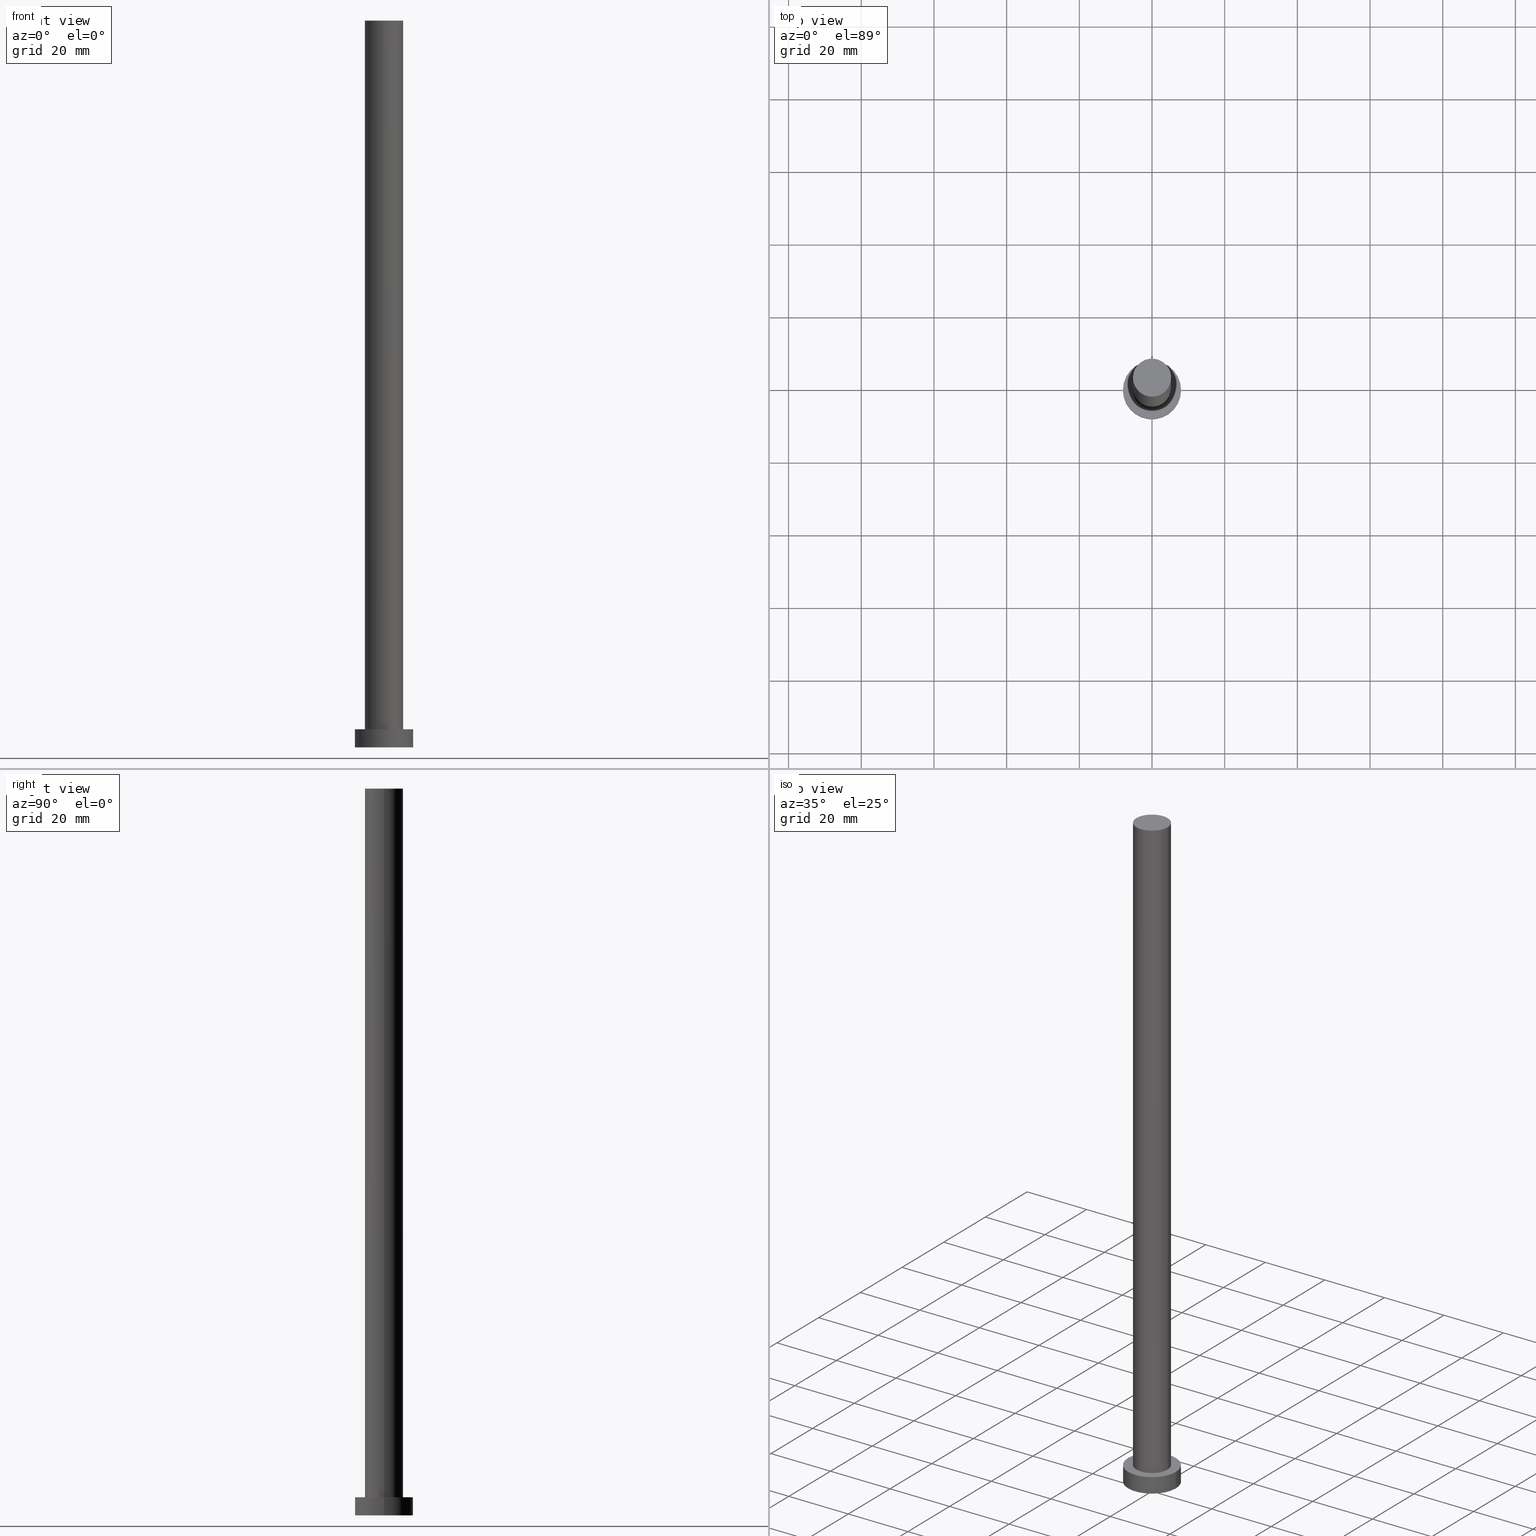
[diagram: canonical four-view strip — front | top / right | iso, engineering-drawing reading convention]
A machine part, canonical four-view strip (front | top / right | iso — engineering-drawing reading convention). The complete STEP part file that produces these views, byte-faithful:
ISO-10303-21;
HEADER;
FILE_DESCRIPTION (( 'STEP AP203' ),
    '1' );
FILE_NAME ('7ccc.STEP',
    '2023-02-13T13:13:37',
    ( '' ),
    ( '' ),
    'SwSTEP 2.0',
    'SolidWorks 2019',
    '' );
FILE_SCHEMA (( 'CONFIG_CONTROL_DESIGN' ));
ENDSEC;

DATA;
#1 = ORIENTED_EDGE ( 'NONE', *, *, #195, .T. ) ;
#2 = CARTESIAN_POINT ( 'NONE',  ( 8.000000000000000000, 9.797174393178825657E-16, 0.000000000000000000 ) ) ;
#3 = ORIENTED_EDGE ( 'NONE', *, *, #245, .F. ) ;
#4 = DATE_AND_TIME ( #83, #23 ) ;
#5 = CARTESIAN_POINT ( 'NONE',  ( 0.000000000000000000, 0.000000000000000000, 5.000000000000000000 ) ) ;
#6 = ORIENTED_EDGE ( 'NONE', *, *, #34, .F. ) ;
#7 = PERSON_AND_ORGANIZATION ( #231, #40 ) ;
#8 = AXIS2_PLACEMENT_3D ( 'NONE', #94, #197, #251 ) ;
#9 = DIRECTION ( 'NONE',  ( 0.000000000000000000, 0.000000000000000000, 1.000000000000000000 ) ) ;
#10 = ORIENTED_EDGE ( 'NONE', *, *, #52, .T. ) ;
#11 = PERSON_AND_ORGANIZATION_ROLE ( 'design_supplier' ) ;
#12 = CARTESIAN_POINT ( 'NONE',  ( -8.000000000000000000, 0.000000000000000000, 5.000000000000000000 ) ) ;
#13 = COORDINATED_UNIVERSAL_TIME_OFFSET ( 1, 0, .AHEAD. ) ;
#14 = FACE_OUTER_BOUND ( 'NONE', #138, .T. ) ;
#15 = CC_DESIGN_PERSON_AND_ORGANIZATION_ASSIGNMENT ( #7, #201, ( #149 ) ) ;
#16 = PLANE ( 'NONE',  #79 ) ;
#17 = CC_DESIGN_PERSON_AND_ORGANIZATION_ASSIGNMENT ( #22, #177, ( #152 ) ) ;
#18 = AXIS2_PLACEMENT_3D ( 'NONE', #205, #86, #241 ) ;
#19 = AXIS2_PLACEMENT_3D ( 'NONE', #82, #112, #130 ) ;
#20 = CARTESIAN_POINT ( 'NONE',  ( 0.000000000000000000, 0.000000000000000000, 200.0000000000000000 ) ) ;
#21 = ORIENTED_EDGE ( 'NONE', *, *, #195, .F. ) ;
#22 = PERSON_AND_ORGANIZATION ( #231, #40 ) ;
#23 = LOCAL_TIME ( 14, 13, 37.00000000000000000, #107 ) ;
#24 = DIRECTION ( 'NONE',  ( -0.000000000000000000, -0.000000000000000000, -1.000000000000000000 ) ) ;
#25 = EDGE_CURVE ( 'NONE', #42, #41, #115, .T. ) ;
#26 = COORDINATED_UNIVERSAL_TIME_OFFSET ( 1, 0, .AHEAD. ) ;
#27 = ORIENTED_EDGE ( 'NONE', *, *, #175, .F. ) ;
#28 = PERSON_AND_ORGANIZATION ( #231, #40 ) ;
#29 = FACE_OUTER_BOUND ( 'NONE', #109, .T. ) ;
#30 = CARTESIAN_POINT ( 'NONE',  ( -8.000000000000000000, 0.000000000000000000, 5.000000000000000000 ) ) ;
#31 = PERSON_AND_ORGANIZATION ( #231, #40 ) ;
#32 = CARTESIAN_POINT ( 'NONE',  ( 8.000000000000000000, 9.797174393178825657E-16, 5.000000000000000000 ) ) ;
#33 = APPROVAL ( #88, 'NEUR�EN�' ) ;
#34 = EDGE_CURVE ( 'NONE', #102, #158, #250, .T. ) ;
#35 = CARTESIAN_POINT ( 'NONE',  ( 0.000000000000000000, 0.000000000000000000, 200.0000000000000000 ) ) ;
#36 = DIRECTION ( 'NONE',  ( -0.000000000000000000, -0.000000000000000000, -1.000000000000000000 ) ) ;
#37 = EDGE_CURVE ( 'NONE', #203, #180, #229, .T. ) ;
#38 = AXIS2_PLACEMENT_3D ( 'NONE', #147, #50, #209 ) ;
#39 = CARTESIAN_POINT ( 'NONE',  ( 0.000000000000000000, 0.000000000000000000, 0.000000000000000000 ) ) ;
#40 = ORGANIZATION ( 'NEUR�EN�', 'NEUR�EN�', '' ) ;
#41 = VERTEX_POINT ( 'NONE', #247 ) ;
#42 = VERTEX_POINT ( 'NONE', #44 ) ;
#43 = APPROVAL_DATE_TIME ( #4, #165 ) ;
#44 = CARTESIAN_POINT ( 'NONE',  ( -5.250000000000000000, 0.000000000000000000, 200.0000000000000000 ) ) ;
#45 = EDGE_LOOP ( 'NONE', ( #178, #77 ) ) ;
#46 = DATE_AND_TIME ( #103, #190 ) ;
#47 = LINE ( 'NONE', #12, #218 ) ;
#48 = ORIENTED_EDGE ( 'NONE', *, *, #75, .T. ) ;
#49 = CARTESIAN_POINT ( 'NONE',  ( -5.250000000000000000, 0.000000000000000000, 5.000000000000000000 ) ) ;
#50 = DIRECTION ( 'NONE',  ( 0.000000000000000000, 0.000000000000000000, 1.000000000000000000 ) ) ;
#51 = FACE_OUTER_BOUND ( 'NONE', #62, .T. ) ;
#52 = EDGE_CURVE ( 'NONE', #176, #58, #136, .T. ) ;
#53 = CARTESIAN_POINT ( 'NONE',  ( 0.000000000000000000, 0.000000000000000000, 5.000000000000000000 ) ) ;
#54 = FACE_OUTER_BOUND ( 'NONE', #253, .T. ) ;
#55 = DIRECTION ( 'NONE',  ( -0.000000000000000000, -0.000000000000000000, -1.000000000000000000 ) ) ;
#56 = ADVANCED_FACE ( 'NONE', ( #80 ), #221, .T. ) ;
#57 = ADVANCED_FACE ( 'NONE', ( #54 ), #120, .F. ) ;
#58 = VERTEX_POINT ( 'NONE', #127 ) ;
#59 = AXIS2_PLACEMENT_3D ( 'NONE', #119, #123, #96 ) ;
#60 = APPLICATION_PROTOCOL_DEFINITION ( 'international standard', 'config_control_design', 1994, #89 ) ;
#61 = APPLICATION_PROTOCOL_DEFINITION ( 'international standard', 'config_control_design', 1994, #207 ) ;
#62 = EDGE_LOOP ( 'NONE', ( #198, #224 ) ) ;
#63 = APPROVAL_ROLE ( '' ) ;
#64 = CYLINDRICAL_SURFACE ( 'NONE', #148, 5.250000000000000000 ) ;
#65 = ORIENTED_EDGE ( 'NONE', *, *, #70, .T. ) ;
#66 = AXIS2_PLACEMENT_3D ( 'NONE', #90, #171, #237 ) ;
#67 = DIRECTION ( 'NONE',  ( 1.000000000000000000, 0.000000000000000000, 0.000000000000000000 ) ) ;
#68 = DIRECTION ( 'NONE',  ( -0.000000000000000000, -0.000000000000000000, -1.000000000000000000 ) ) ;
#69 = AXIS2_PLACEMENT_3D ( 'NONE', #39, #235, #199 ) ;
#70 = EDGE_CURVE ( 'NONE', #158, #102, #192, .T. ) ;
#71 = AXIS2_PLACEMENT_3D ( 'NONE', #5, #9, #84 ) ;
#72 = LOCAL_TIME ( 14, 13, 37.00000000000000000, #117 ) ;
#73 = UNCERTAINTY_MEASURE_WITH_UNIT (LENGTH_MEASURE( 1.000000000000000082E-05 ), #248, 'distance_accuracy_value', 'NONE');
#74 = CC_DESIGN_SECURITY_CLASSIFICATION ( #149, ( #216 ) ) ;
#75 = EDGE_CURVE ( 'NONE', #42, #176, #185, .T. ) ;
#76 = ORIENTED_EDGE ( 'NONE', *, *, #70, .F. ) ;
#77 = ORIENTED_EDGE ( 'NONE', *, *, #37, .T. ) ;
#78 = EDGE_LOOP ( 'NONE', ( #99, #173, #172, #21 ) ) ;
#79 = AXIS2_PLACEMENT_3D ( 'NONE', #53, #166, #134 ) ;
#80 = FACE_OUTER_BOUND ( 'NONE', #78, .T. ) ;
#81 = DATE_AND_TIME ( #126, #183 ) ;
#82 = CARTESIAN_POINT ( 'NONE',  ( 0.000000000000000000, 0.000000000000000000, 200.0000000000000000 ) ) ;
#83 = CALENDAR_DATE ( 2023, 13, 2 ) ;
#84 = DIRECTION ( 'NONE',  ( 1.000000000000000000, 0.000000000000000000, 0.000000000000000000 ) ) ;
#85 = APPROVAL_ROLE ( '' ) ;
#86 = DIRECTION ( 'NONE',  ( -0.000000000000000000, -0.000000000000000000, -1.000000000000000000 ) ) ;
#87 = EDGE_LOOP ( 'NONE', ( #140, #27 ) ) ;
#88 = APPROVAL_STATUS ( 'not_yet_approved' ) ;
#89 = APPLICATION_CONTEXT ( 'configuration controlled 3d designs of mechanical parts and assemblies' ) ;
#90 = CARTESIAN_POINT ( 'NONE',  ( 0.000000000000000000, 0.000000000000000000, 5.000000000000000000 ) ) ;
#91 = LINE ( 'NONE', #232, #95 ) ;
#92 = EDGE_CURVE ( 'NONE', #180, #203, #240, .T. ) ;
#93 = APPROVAL_PERSON_ORGANIZATION ( #31, #165, #113 ) ;
#94 = CARTESIAN_POINT ( 'NONE',  ( 0.000000000000000000, 0.000000000000000000, 5.000000000000000000 ) ) ;
#95 = VECTOR ( 'NONE', #55, 1000.000000000000000 ) ;
#96 = DIRECTION ( 'NONE',  ( 1.000000000000000000, 0.000000000000000000, 0.000000000000000000 ) ) ;
#97 = ORIENTED_EDGE ( 'NONE', *, *, #133, .F. ) ;
#98 = CARTESIAN_POINT ( 'NONE',  ( 0.000000000000000000, 0.000000000000000000, 5.000000000000000000 ) ) ;
#99 = ORIENTED_EDGE ( 'NONE', *, *, #37, .F. ) ;
#100 = CC_DESIGN_APPROVAL ( #189, ( #149 ) ) ;
#101 = CARTESIAN_POINT ( 'NONE',  ( 0.000000000000000000, 0.000000000000000000, 0.000000000000000000 ) ) ;
#102 = VERTEX_POINT ( 'NONE', #2 ) ;
#103 = CALENDAR_DATE ( 2023, 13, 2 ) ;
#104 = CARTESIAN_POINT ( 'NONE',  ( -8.000000000000000000, 0.000000000000000000, 0.000000000000000000 ) ) ;
#105 = ORIENTED_EDGE ( 'NONE', *, *, #175, .T. ) ;
#106 = ADVANCED_FACE ( 'NONE', ( #14 ), #164, .T. ) ;
#107 = COORDINATED_UNIVERSAL_TIME_OFFSET ( 1, 0, .AHEAD. ) ;
#108 = LINE ( 'NONE', #226, #159 ) ;
#109 = EDGE_LOOP ( 'NONE', ( #97, #236, #48, #10 ) ) ;
#110 = LOCAL_TIME ( 14, 13, 37.00000000000000000, #141 ) ;
#111 = APPROVAL_DATE_TIME ( #163, #33 ) ;
#112 = DIRECTION ( 'NONE',  ( 0.000000000000000000, 0.000000000000000000, 1.000000000000000000 ) ) ;
#113 = APPROVAL_ROLE ( '' ) ;
#114 = DIRECTION ( 'NONE',  ( 1.000000000000000000, 0.000000000000000000, -0.000000000000000000 ) ) ;
#115 = CIRCLE ( 'NONE', #168, 5.250000000000000000 ) ;
#116 = DIRECTION ( 'NONE',  ( -1.000000000000000000, 0.000000000000000000, 0.000000000000000000 ) ) ;
#117 = COORDINATED_UNIVERSAL_TIME_OFFSET ( 1, 0, .AHEAD. ) ;
#118 = CC_DESIGN_APPROVAL ( #33, ( #216 ) ) ;
#119 = CARTESIAN_POINT ( 'NONE',  ( 0.000000000000000000, 0.000000000000000000, 0.000000000000000000 ) ) ;
#120 = PLANE ( 'NONE',  #143 ) ;
#121 = ADVANCED_FACE ( 'NONE', ( #51 ), #228, .T. ) ;
#122 = ORIENTED_EDGE ( 'NONE', *, *, #75, .F. ) ;
#123 = DIRECTION ( 'NONE',  ( 0.000000000000000000, 0.000000000000000000, 1.000000000000000000 ) ) ;
#124 = PERSON_AND_ORGANIZATION ( #231, #40 ) ;
#125 = CARTESIAN_POINT ( 'NONE',  ( 0.000000000000000000, 0.000000000000000000, 5.000000000000000000 ) ) ;
#126 = CALENDAR_DATE ( 2023, 13, 2 ) ;
#127 = CARTESIAN_POINT ( 'NONE',  ( 5.250000000000000000, 6.429395695523604153E-16, 5.000000000000000000 ) ) ;
#128 = CARTESIAN_POINT ( 'NONE',  ( -5.250000000000000000, 0.000000000000000000, 200.0000000000000000 ) ) ;
#129 = DIRECTION ( 'NONE',  ( 1.000000000000000000, 0.000000000000000000, 0.000000000000000000 ) ) ;
#130 = DIRECTION ( 'NONE',  ( 1.000000000000000000, 0.000000000000000000, -0.000000000000000000 ) ) ;
#131 = AXIS2_PLACEMENT_3D ( 'NONE', #125, #244, #129 ) ;
#132 = AXIS2_PLACEMENT_3D ( 'NONE', #101, #151, #67 ) ;
#133 = EDGE_CURVE ( 'NONE', #41, #58, #108, .T. ) ;
#134 = DIRECTION ( 'NONE',  ( 1.000000000000000000, 0.000000000000000000, -0.000000000000000000 ) ) ;
#135 = FACE_OUTER_BOUND ( 'NONE', #220, .T. ) ;
#136 = CIRCLE ( 'NONE', #8, 5.250000000000000000 ) ;
#137 = ORIENTED_EDGE ( 'NONE', *, *, #133, .T. ) ;
#138 = EDGE_LOOP ( 'NONE', ( #3, #239, #1, #65 ) ) ;
#139 = APPROVAL_STATUS ( 'not_yet_approved' ) ;
#140 = ORIENTED_EDGE ( 'NONE', *, *, #52, .F. ) ;
#141 = COORDINATED_UNIVERSAL_TIME_OFFSET ( 1, 0, .AHEAD. ) ;
#142 = DIRECTION ( 'NONE',  ( -1.000000000000000000, 0.000000000000000000, 0.000000000000000000 ) ) ;
#143 = AXIS2_PLACEMENT_3D ( 'NONE', #144, #179, #114 ) ;
#144 = CARTESIAN_POINT ( 'NONE',  ( 0.000000000000000000, 0.000000000000000000, 0.000000000000000000 ) ) ;
#145 = PERSON_AND_ORGANIZATION_ROLE ( 'design_owner' ) ;
#146 = MECHANICAL_CONTEXT ( 'NONE', #89, 'mechanical' ) ;
#147 = CARTESIAN_POINT ( 'NONE',  ( 0.000000000000000000, 0.000000000000000000, 200.0000000000000000 ) ) ;
#148 = AXIS2_PLACEMENT_3D ( 'NONE', #182, #24, #142 ) ;
#149 = SECURITY_CLASSIFICATION ( '', '', #225 ) ;
#150 = APPROVAL_DATE_TIME ( #246, #189 ) ;
#151 = DIRECTION ( 'NONE',  ( 0.000000000000000000, 0.000000000000000000, 1.000000000000000000 ) ) ;
#152 = PRODUCT_DEFINITION ( 'NEZN�M�', '', #216, #188 ) ;
#153 = CIRCLE ( 'NONE', #71, 5.250000000000000000 ) ;
#154 = AXIS2_PLACEMENT_3D ( 'NONE', #35, #36, #116 ) ;
#155 = ADVANCED_FACE ( 'NONE', ( #29 ), #64, .T. ) ;
#156 = PRODUCT_DEFINITION_SHAPE ( 'NONE', 'NONE',  #152 ) ;
#157 = DIRECTION ( 'NONE',  ( 0.000000000000000000, 0.000000000000000000, 1.000000000000000000 ) ) ;
#158 = VERTEX_POINT ( 'NONE', #104 ) ;
#159 = VECTOR ( 'NONE', #160, 1000.000000000000000 ) ;
#160 = DIRECTION ( 'NONE',  ( -0.000000000000000000, -0.000000000000000000, -1.000000000000000000 ) ) ;
#161 = PERSON_AND_ORGANIZATION ( #231, #40 ) ;
#162 = APPROVAL_PERSON_ORGANIZATION ( #28, #189, #85 ) ;
#163 = DATE_AND_TIME ( #206, #110 ) ;
#164 = CYLINDRICAL_SURFACE ( 'NONE', #18, 8.000000000000000000 ) ;
#165 = APPROVAL ( #139, 'NEUR�EN�' ) ;
#166 = DIRECTION ( 'NONE',  ( 0.000000000000000000, 0.000000000000000000, 1.000000000000000000 ) ) ;
#167 = ORIENTED_EDGE ( 'NONE', *, *, #200, .F. ) ;
#168 = AXIS2_PLACEMENT_3D ( 'NONE', #20, #157, #217 ) ;
#169 = APPROVAL_PERSON_ORGANIZATION ( #184, #33, #63 ) ;
#170 = CC_DESIGN_PERSON_AND_ORGANIZATION_ASSIGNMENT ( #161, #222, ( #216 ) ) ;
#171 = DIRECTION ( 'NONE',  ( -0.000000000000000000, -0.000000000000000000, -1.000000000000000000 ) ) ;
#172 = ORIENTED_EDGE ( 'NONE', *, *, #34, .T. ) ;
#173 = ORIENTED_EDGE ( 'NONE', *, *, #245, .T. ) ;
#174 = DIRECTION ( 'NONE',  ( 1.000000000000000000, 0.000000000000000000, 0.000000000000000000 ) ) ;
#175 = EDGE_CURVE ( 'NONE', #58, #176, #153, .T. ) ;
#176 = VERTEX_POINT ( 'NONE', #49 ) ;
#177 = PERSON_AND_ORGANIZATION_ROLE ( 'creator' ) ;
#178 = ORIENTED_EDGE ( 'NONE', *, *, #92, .T. ) ;
#179 = DIRECTION ( 'NONE',  ( 0.000000000000000000, 0.000000000000000000, 1.000000000000000000 ) ) ;
#180 = VERTEX_POINT ( 'NONE', #30 ) ;
#181 = APPROVAL_STATUS ( 'not_yet_approved' ) ;
#182 = CARTESIAN_POINT ( 'NONE',  ( 0.000000000000000000, 0.000000000000000000, 200.0000000000000000 ) ) ;
#183 = LOCAL_TIME ( 14, 13, 37.00000000000000000, #13 ) ;
#184 = PERSON_AND_ORGANIZATION ( #231, #40 ) ;
#185 = LINE ( 'NONE', #128, #254 ) ;
#186 = DATE_TIME_ROLE ( 'creation_date' ) ;
#187 = FACE_BOUND ( 'NONE', #87, .T. ) ;
#188 = DESIGN_CONTEXT ( 'detailed design', #207, 'design' ) ;
#189 = APPROVAL ( #181, 'NEUR�EN�' ) ;
#190 = LOCAL_TIME ( 14, 13, 37.00000000000000000, #26 ) ;
#191 = CALENDAR_DATE ( 2023, 13, 2 ) ;
#192 = CIRCLE ( 'NONE', #132, 8.000000000000000000 ) ;
#193 =( GEOMETRIC_REPRESENTATION_CONTEXT ( 3 ) GLOBAL_UNCERTAINTY_ASSIGNED_CONTEXT ( ( #73 ) ) GLOBAL_UNIT_ASSIGNED_CONTEXT ( ( #248, #233, #211 ) ) REPRESENTATION_CONTEXT ( 'NONE', 'WORKASPACE' ) );
#194 = FACE_OUTER_BOUND ( 'NONE', #45, .T. ) ;
#195 = EDGE_CURVE ( 'NONE', #180, #158, #47, .T. ) ;
#196 = PRODUCT ( '7ccc', '7ccc', '', ( #146 ) ) ;
#197 = DIRECTION ( 'NONE',  ( 0.000000000000000000, 0.000000000000000000, 1.000000000000000000 ) ) ;
#198 = ORIENTED_EDGE ( 'NONE', *, *, #25, .T. ) ;
#199 = DIRECTION ( 'NONE',  ( 1.000000000000000000, 0.000000000000000000, 0.000000000000000000 ) ) ;
#200 = EDGE_CURVE ( 'NONE', #41, #42, #255, .T. ) ;
#201 = PERSON_AND_ORGANIZATION_ROLE ( 'classification_officer' ) ;
#202 = DIRECTION ( 'NONE',  ( -0.000000000000000000, -0.000000000000000000, -1.000000000000000000 ) ) ;
#203 = VERTEX_POINT ( 'NONE', #32 ) ;
#204 = DATE_TIME_ROLE ( 'classification_date' ) ;
#205 = CARTESIAN_POINT ( 'NONE',  ( 0.000000000000000000, 0.000000000000000000, 5.000000000000000000 ) ) ;
#206 = CALENDAR_DATE ( 2023, 13, 2 ) ;
#207 = APPLICATION_CONTEXT ( 'configuration controlled 3d designs of mechanical parts and assemblies' ) ;
#208 = PERSON_AND_ORGANIZATION ( #231, #40 ) ;
#209 = DIRECTION ( 'NONE',  ( 1.000000000000000000, 0.000000000000000000, 0.000000000000000000 ) ) ;
#210 = SHAPE_DEFINITION_REPRESENTATION ( #156, #215 ) ;
#211 =( NAMED_UNIT ( * ) SI_UNIT ( $, .STERADIAN. ) SOLID_ANGLE_UNIT ( ) );
#212 = DIRECTION ( 'NONE',  ( 0.000000000000000000, 0.000000000000000000, 1.000000000000000000 ) ) ;
#213 = ADVANCED_FACE ( 'NONE', ( #187, #194 ), #16, .T. ) ;
#214 = CYLINDRICAL_SURFACE ( 'NONE', #154, 5.250000000000000000 ) ;
#215 = ADVANCED_BREP_SHAPE_REPRESENTATION ( '7ccc', ( #219, #69 ), #193 ) ;
#216 = PRODUCT_DEFINITION_FORMATION_WITH_SPECIFIED_SOURCE ( 'LIBOVOLN�', '', #196, .NOT_KNOWN. ) ;
#217 = DIRECTION ( 'NONE',  ( 1.000000000000000000, 0.000000000000000000, 0.000000000000000000 ) ) ;
#218 = VECTOR ( 'NONE', #68, 1000.000000000000000 ) ;
#219 = MANIFOLD_SOLID_BREP ( 'P�idat vysunut�m3', #223 ) ;
#220 = EDGE_LOOP ( 'NONE', ( #167, #137, #105, #122 ) ) ;
#221 = CYLINDRICAL_SURFACE ( 'NONE', #66, 8.000000000000000000 ) ;
#222 = PERSON_AND_ORGANIZATION_ROLE ( 'creator' ) ;
#223 = CLOSED_SHELL ( 'NONE', ( #252, #56, #106, #213, #57, #155, #121 ) ) ;
#224 = ORIENTED_EDGE ( 'NONE', *, *, #200, .T. ) ;
#225 = SECURITY_CLASSIFICATION_LEVEL ( 'unclassified' ) ;
#226 = CARTESIAN_POINT ( 'NONE',  ( 5.250000000000000000, 6.429395695523604153E-16, 200.0000000000000000 ) ) ;
#227 = CC_DESIGN_DATE_AND_TIME_ASSIGNMENT ( #81, #186, ( #152 ) ) ;
#228 = PLANE ( 'NONE',  #19 ) ;
#229 = CIRCLE ( 'NONE', #243, 8.000000000000000000 ) ;
#230 = CC_DESIGN_APPROVAL ( #165, ( #152 ) ) ;
#231 = PERSON ( 'NEUR�EN�', 'NEUR�EN�', 'NEUR�EN�', ('NEUR�EN�'), ('NEUR�EN�'), ('NEUR�EN�') ) ;
#232 = CARTESIAN_POINT ( 'NONE',  ( 8.000000000000000000, 9.797174393178825657E-16, 5.000000000000000000 ) ) ;
#233 =( NAMED_UNIT ( * ) PLANE_ANGLE_UNIT ( ) SI_UNIT ( $, .RADIAN. ) );
#234 = CC_DESIGN_DATE_AND_TIME_ASSIGNMENT ( #46, #204, ( #149 ) ) ;
#235 = DIRECTION ( 'NONE',  ( 0.000000000000000000, 0.000000000000000000, 1.000000000000000000 ) ) ;
#236 = ORIENTED_EDGE ( 'NONE', *, *, #25, .F. ) ;
#237 = DIRECTION ( 'NONE',  ( -1.000000000000000000, 0.000000000000000000, 0.000000000000000000 ) ) ;
#238 = CC_DESIGN_PERSON_AND_ORGANIZATION_ASSIGNMENT ( #124, #11, ( #216 ) ) ;
#239 = ORIENTED_EDGE ( 'NONE', *, *, #92, .F. ) ;
#240 = CIRCLE ( 'NONE', #131, 8.000000000000000000 ) ;
#241 = DIRECTION ( 'NONE',  ( -1.000000000000000000, 0.000000000000000000, 0.000000000000000000 ) ) ;
#242 = CC_DESIGN_PERSON_AND_ORGANIZATION_ASSIGNMENT ( #208, #145, ( #196 ) ) ;
#243 = AXIS2_PLACEMENT_3D ( 'NONE', #98, #212, #174 ) ;
#244 = DIRECTION ( 'NONE',  ( 0.000000000000000000, 0.000000000000000000, 1.000000000000000000 ) ) ;
#245 = EDGE_CURVE ( 'NONE', #203, #102, #91, .T. ) ;
#246 = DATE_AND_TIME ( #191, #72 ) ;
#247 = CARTESIAN_POINT ( 'NONE',  ( 5.250000000000000000, 6.429395695523604153E-16, 200.0000000000000000 ) ) ;
#248 =( LENGTH_UNIT ( ) NAMED_UNIT ( * ) SI_UNIT ( .MILLI., .METRE. ) );
#249 = PRODUCT_RELATED_PRODUCT_CATEGORY ( 'detail', '', ( #196 ) ) ;
#250 = CIRCLE ( 'NONE', #59, 8.000000000000000000 ) ;
#251 = DIRECTION ( 'NONE',  ( 1.000000000000000000, 0.000000000000000000, 0.000000000000000000 ) ) ;
#252 = ADVANCED_FACE ( 'NONE', ( #135 ), #214, .T. ) ;
#253 = EDGE_LOOP ( 'NONE', ( #76, #6 ) ) ;
#254 = VECTOR ( 'NONE', #202, 1000.000000000000000 ) ;
#255 = CIRCLE ( 'NONE', #38, 5.250000000000000000 ) ;
ENDSEC;
END-ISO-10303-21;
